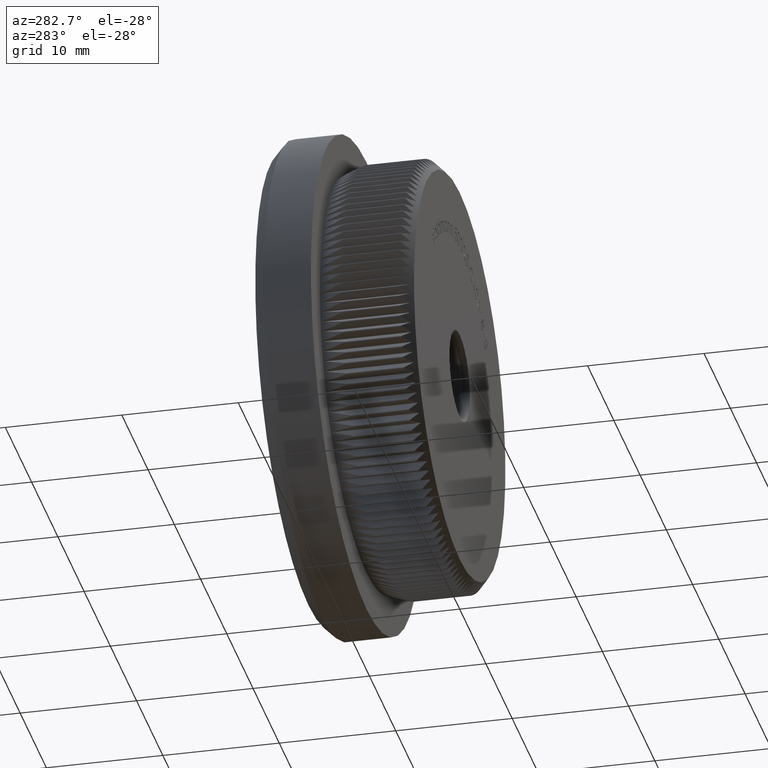
[diagram: clean part render]
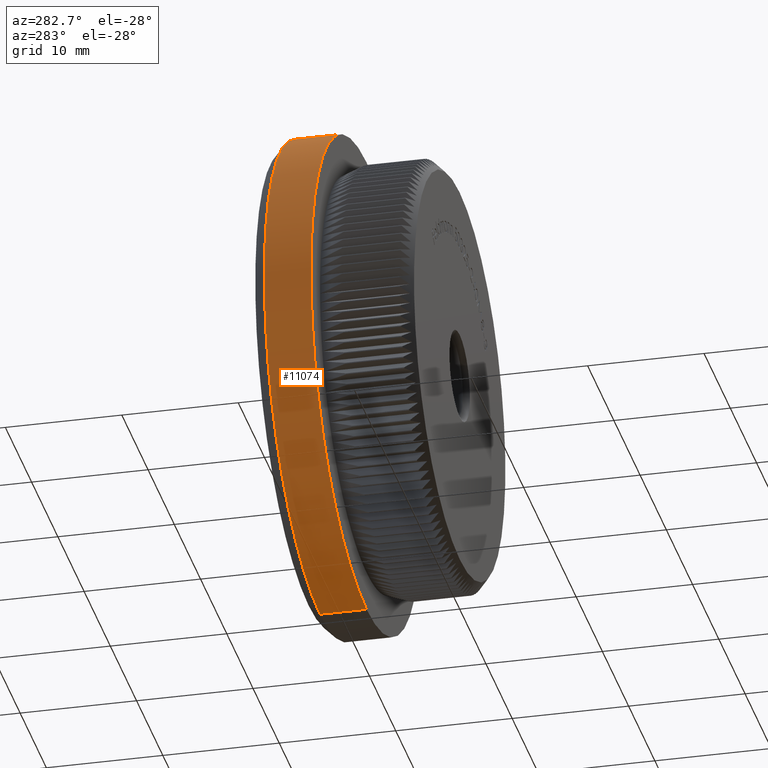
[diagram: same view with one face highlighted and labeled with its STEP entity id]
A machine part, auxiliary view. The second image highlights one B-rep face of the part: STEP entity #11074.
In plain terms, the highlighted cylindrical surface (partial cylindrical patch) has radius 21.2 mm, axis along (-0, -1, -0).
Its self-contained STEP definition (entity closure, byte-faithful):
#750 = DIRECTION ( 'NONE',  ( 0.0000000000000000000, 0.0000000000000000000, 1.000000000000000000 ) ) ;
#773 = EDGE_CURVE ( 'NONE', #23348, #28368, #20703, .T. ) ;
#1565 = DIRECTION ( 'NONE',  ( -0.0000000000000000000, -1.000000000000000000, -0.0000000000000000000 ) ) ;
#1704 = AXIS2_PLACEMENT_3D ( 'NONE', #17978, #27716, #750 ) ;
#3164 = FACE_OUTER_BOUND ( 'NONE', #21719, .T. ) ;
#4278 = DIRECTION ( 'NONE',  ( 0.0000000000000000000, 0.0000000000000000000, -1.000000000000000000 ) ) ;
#6614 = ORIENTED_EDGE ( 'NONE', *, *, #8012, .F. ) ;
#7122 = AXIS2_PLACEMENT_3D ( 'NONE', #19387, #19286, #4278 ) ;
#7254 = CARTESIAN_POINT ( 'NONE',  ( 0.0000000000000000000, 0.0000000000000000000, -21.19999999999999900 ) ) ;
#7608 = EDGE_CURVE ( 'NONE', #19673, #28368, #32415, .T. ) ;
#7994 = LINE ( 'NONE', #21650, #31986 ) ;
#8012 = EDGE_CURVE ( 'NONE', #21120, #23348, #7994, .T. ) ;
#8844 = CARTESIAN_POINT ( 'NONE',  ( 0.0000000000000000000, 8.000000000000000000, -21.19999999999999900 ) ) ;
#10257 = DIRECTION ( 'NONE',  ( -0.0000000000000000000, -1.000000000000000000, -0.0000000000000000000 ) ) ;
#10935 = CARTESIAN_POINT ( 'NONE',  ( 2.596251214192388800E-015, 8.000000000000000000, 21.19999999999999900 ) ) ;
#10951 = ORIENTED_EDGE ( 'NONE', *, *, #7608, .T. ) ;
#11074 = ADVANCED_FACE ( 'NONE', ( #3164 ), #30369, .T. ) ;
#16279 = CARTESIAN_POINT ( 'NONE',  ( 2.596251214192388800E-015, 11.99999999999999800, 21.19999999999999900 ) ) ;
#17749 = ORIENTED_EDGE ( 'NONE', *, *, #32331, .T. ) ;
#17978 = CARTESIAN_POINT ( 'NONE',  ( 0.0000000000000000000, 11.99999999999999800, 0.0000000000000000000 ) ) ;
#19286 = DIRECTION ( 'NONE',  ( -0.0000000000000000000, -1.000000000000000000, -0.0000000000000000000 ) ) ;
#19387 = CARTESIAN_POINT ( 'NONE',  ( 0.0000000000000000000, 8.000000000000000000, 0.0000000000000000000 ) ) ;
#19665 = CARTESIAN_POINT ( 'NONE',  ( 0.0000000000000000000, 11.99999999999999800, -21.19999999999999900 ) ) ;
#19673 = VERTEX_POINT ( 'NONE', #19665 ) ;
#19943 = CIRCLE ( 'NONE', #1704, 21.19999999999999900 ) ;
#20026 = CARTESIAN_POINT ( 'NONE',  ( 0.0000000000000000000, 0.0000000000000000000, 0.0000000000000000000 ) ) ;
#20703 = CIRCLE ( 'NONE', #7122, 21.19999999999999900 ) ;
#21120 = VERTEX_POINT ( 'NONE', #16279 ) ;
#21408 = AXIS2_PLACEMENT_3D ( 'NONE', #20026, #10257, #22891 ) ;
#21650 = CARTESIAN_POINT ( 'NONE',  ( 2.596251214192388800E-015, 0.0000000000000000000, 21.19999999999999900 ) ) ;
#21719 = EDGE_LOOP ( 'NONE', ( #6614, #17749, #10951, #31608 ) ) ;
#22891 = DIRECTION ( 'NONE',  ( 0.0000000000000000000, 0.0000000000000000000, -1.000000000000000000 ) ) ;
#23348 = VERTEX_POINT ( 'NONE', #10935 ) ;
#27716 = DIRECTION ( 'NONE',  ( -0.0000000000000000000, -1.000000000000000000, -0.0000000000000000000 ) ) ;
#28368 = VERTEX_POINT ( 'NONE', #8844 ) ;
#29576 = DIRECTION ( 'NONE',  ( -0.0000000000000000000, -1.000000000000000000, -0.0000000000000000000 ) ) ;
#30369 = CYLINDRICAL_SURFACE ( 'NONE', #21408, 21.19999999999999900 ) ;
#31245 = VECTOR ( 'NONE', #29576, 1000.000000000000000 ) ;
#31608 = ORIENTED_EDGE ( 'NONE', *, *, #773, .F. ) ;
#31986 = VECTOR ( 'NONE', #1565, 1000.000000000000000 ) ;
#32331 = EDGE_CURVE ( 'NONE', #21120, #19673, #19943, .T. ) ;
#32415 = LINE ( 'NONE', #7254, #31245 ) ;